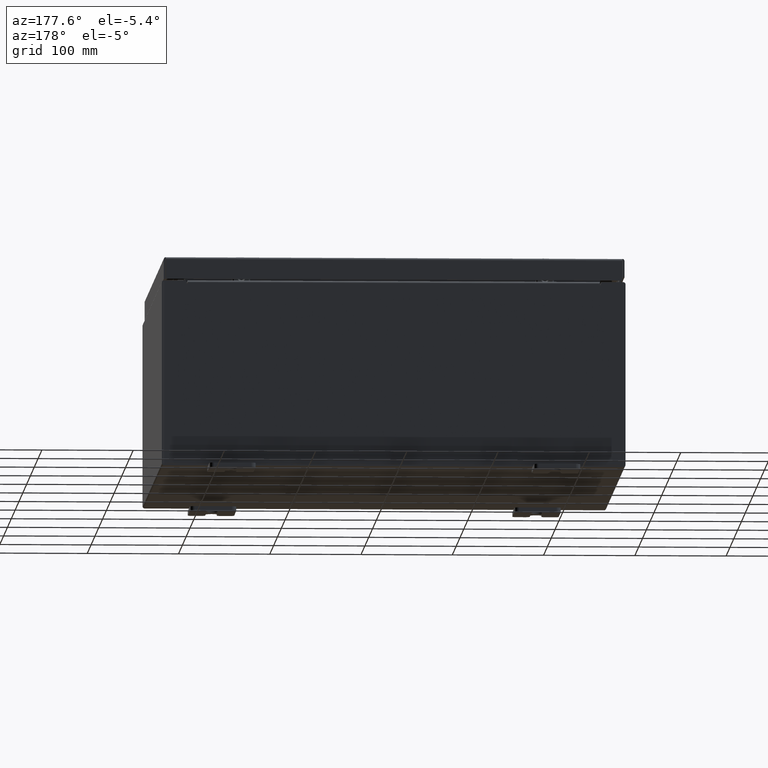
[diagram: clean part render]
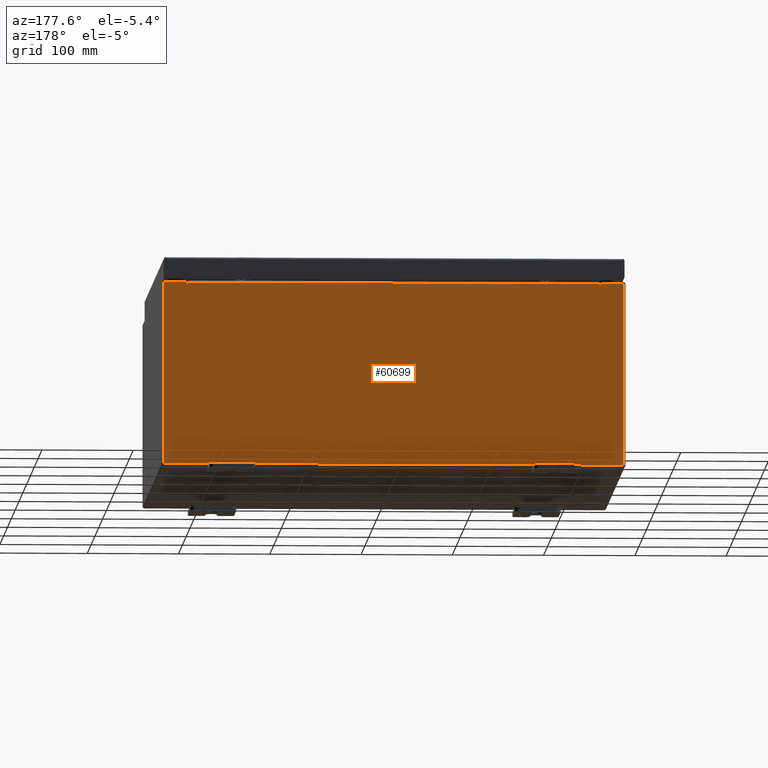
[diagram: same view with one face highlighted and labeled with its STEP entity id]
A machine part, auxiliary view. The second image highlights one B-rep face of the part: STEP entity #60699.
In plain terms, the highlighted planar face has unit normal (0, -1, 0).
Its self-contained STEP definition (entity closure, byte-faithful):
#80 = LINE ( 'NONE', #49417, #36133 ) ;
#766 = VERTEX_POINT ( 'NONE', #25278 ) ;
#2385 = CARTESIAN_POINT ( 'NONE',  ( 8.887200000000000000, 0.0000000000000000000, 3.874949999999999700 ) ) ;
#3196 = ORIENTED_EDGE ( 'NONE', *, *, #36153, .F. ) ;
#3719 = CARTESIAN_POINT ( 'NONE',  ( -8.887200000000000000, 1.024442997624098700E-016, 3.912299999999999700 ) ) ;
#4032 = VERTEX_POINT ( 'NONE', #20418 ) ;
#4768 = LINE ( 'NONE', #44966, #42350 ) ;
#5080 = VECTOR ( 'NONE', #29227, 39.37007874015748100 ) ;
#5170 = VERTEX_POINT ( 'NONE', #28184 ) ;
#5318 = DIRECTION ( 'NONE',  ( 0.0000000000000000000, 0.0000000000000000000, 1.000000000000000000 ) ) ;
#5884 = ORIENTED_EDGE ( 'NONE', *, *, #16594, .F. ) ;
#6216 = ORIENTED_EDGE ( 'NONE', *, *, #29322, .F. ) ;
#7608 = VERTEX_POINT ( 'NONE', #20673 ) ;
#7720 = ORIENTED_EDGE ( 'NONE', *, *, #42020, .T. ) ;
#8677 = ORIENTED_EDGE ( 'NONE', *, *, #52267, .T. ) ;
#9258 = DIRECTION ( 'NONE',  ( 1.000000000000000000, 0.0000000000000000000, 0.0000000000000000000 ) ) ;
#9718 = EDGE_CURVE ( 'NONE', #28897, #52872, #47130, .T. ) ;
#10680 = DIRECTION ( 'NONE',  ( 1.000000000000000000, 0.0000000000000000000, 0.0000000000000000000 ) ) ;
#11616 = VECTOR ( 'NONE', #44636, 39.37007874015748100 ) ;
#12121 = LINE ( 'NONE', #38605, #36670 ) ;
#13172 = CIRCLE ( 'NONE', #33611, 0.01867500000000003900 ) ;
#13226 = EDGE_CURVE ( 'NONE', #61220, #31146, #13172, .T. ) ;
#13613 = ORIENTED_EDGE ( 'NONE', *, *, #52079, .T. ) ;
#13871 = CARTESIAN_POINT ( 'NONE',  ( -8.905874999999998200, 0.0000000000000000000, 3.874949999999999700 ) ) ;
#14194 = CARTESIAN_POINT ( 'NONE',  ( -8.924549999999998200, 0.0000000000000000000, 3.874949999999999700 ) ) ;
#14201 = LINE ( 'NONE', #23188, #40301 ) ;
#14304 = EDGE_CURVE ( 'NONE', #62305, #7608, #80, .T. ) ;
#15707 = ORIENTED_EDGE ( 'NONE', *, *, #56538, .T. ) ;
#16594 = EDGE_CURVE ( 'NONE', #58684, #61220, #23667, .T. ) ;
#18009 = CARTESIAN_POINT ( 'NONE',  ( -8.887200000000000000, -0.0000000000000000000, 0.0000000000000000000 ) ) ;
#18787 = DIRECTION ( 'NONE',  ( 0.0000000000000000000, 0.0000000000000000000, -1.000000000000000000 ) ) ;
#18833 = CARTESIAN_POINT ( 'NONE',  ( 8.924550000000000000, 0.0000000000000000000, 3.925299999999999600 ) ) ;
#18946 = LINE ( 'NONE', #21482, #43506 ) ;
#19033 = DIRECTION ( 'NONE',  ( -0.0000000000000000000, 1.000000000000000000, -0.0000000000000000000 ) ) ;
#20418 = CARTESIAN_POINT ( 'NONE',  ( 8.887200000000000000, 0.0000000000000000000, 3.912299999999999700 ) ) ;
#20673 = CARTESIAN_POINT ( 'NONE',  ( 9.925300000000000000, 0.0000000000000000000, -3.925299999999999600 ) ) ;
#20781 = EDGE_CURVE ( 'NONE', #43162, #28897, #18946, .T. ) ;
#21350 = ORIENTED_EDGE ( 'NONE', *, *, #20781, .F. ) ;
#21482 = CARTESIAN_POINT ( 'NONE',  ( 8.924549999999831200, -0.0000000000000000000, -3.873765880731813500E-013 ) ) ;
#22680 = AXIS2_PLACEMENT_3D ( 'NONE', #48415, #19033, #53340 ) ;
#22888 = CARTESIAN_POINT ( 'NONE',  ( 8.924550000000000000, 0.0000000000000000000, 3.874949999999999700 ) ) ;
#22926 = DIRECTION ( 'NONE',  ( 0.0000000000000000000, 0.0000000000000000000, -1.000000000000000000 ) ) ;
#23188 = CARTESIAN_POINT ( 'NONE',  ( -8.887200000000000000, 1.024442997624098700E-016, 3.912299999999999700 ) ) ;
#23667 = LINE ( 'NONE', #18009, #48245 ) ;
#23878 = VECTOR ( 'NONE', #5318, 39.37007874015748100 ) ;
#24252 = DIRECTION ( 'NONE',  ( 0.0000000000000000000, -0.0000000000000000000, -1.000000000000000000 ) ) ;
#24292 = CARTESIAN_POINT ( 'NONE',  ( -9.925300000000000000, 0.0000000000000000000, -3.925299999999999600 ) ) ;
#24623 = LINE ( 'NONE', #39721, #11616 ) ;
#25278 = CARTESIAN_POINT ( 'NONE',  ( -9.925300000000000000, 0.0000000000000000000, 3.925299999999999600 ) ) ;
#27178 = CARTESIAN_POINT ( 'NONE',  ( 9.925300000000000000, 0.0000000000000000000, 3.925299999999999600 ) ) ;
#27546 = ORIENTED_EDGE ( 'NONE', *, *, #9718, .F. ) ;
#28053 = LINE ( 'NONE', #24292, #5080 ) ;
#28184 = CARTESIAN_POINT ( 'NONE',  ( -9.925300000000000000, 0.0000000000000000000, -3.925299999999999600 ) ) ;
#28897 = VERTEX_POINT ( 'NONE', #22888 ) ;
#29227 = DIRECTION ( 'NONE',  ( -1.000000000000000000, -0.0000000000000000000, -0.0000000000000000000 ) ) ;
#29322 = EDGE_CURVE ( 'NONE', #52872, #4032, #50001, .T. ) ;
#29715 = CARTESIAN_POINT ( 'NONE',  ( 8.887200000000000000, 0.0000000000000000000, 0.0000000000000000000 ) ) ;
#31146 = VERTEX_POINT ( 'NONE', #14194 ) ;
#31205 = ORIENTED_EDGE ( 'NONE', *, *, #13226, .F. ) ;
#31856 = LINE ( 'NONE', #56429, #57932 ) ;
#33611 = AXIS2_PLACEMENT_3D ( 'NONE', #13871, #48172, #18787 ) ;
#36133 = VECTOR ( 'NONE', #54321, 39.37007874015748100 ) ;
#36153 = EDGE_CURVE ( 'NONE', #31146, #59396, #24623, .T. ) ;
#36623 = ORIENTED_EDGE ( 'NONE', *, *, #14304, .T. ) ;
#36670 = VECTOR ( 'NONE', #9258, 39.37007874015748100 ) ;
#38605 = CARTESIAN_POINT ( 'NONE',  ( -9.925300000000000000, 0.0000000000000000000, 3.925299999999999600 ) ) ;
#39721 = CARTESIAN_POINT ( 'NONE',  ( -8.924550000000000000, -0.0000000000000000000, 0.0000000000000000000 ) ) ;
#40301 = VECTOR ( 'NONE', #62444, 39.37007874015748100 ) ;
#41687 = DIRECTION ( 'NONE',  ( -0.0000000000000000000, -0.0000000000000000000, 1.000000000000000000 ) ) ;
#42020 = EDGE_CURVE ( 'NONE', #766, #59396, #12121, .T. ) ;
#42028 = CARTESIAN_POINT ( 'NONE',  ( -8.887200000000000000, -0.0000000000000000000, 3.874949999999999700 ) ) ;
#42350 = VECTOR ( 'NONE', #10680, 39.37007874015748100 ) ;
#43162 = VERTEX_POINT ( 'NONE', #18833 ) ;
#43506 = VECTOR ( 'NONE', #46164, 39.37007874015748100 ) ;
#43577 = CARTESIAN_POINT ( 'NONE',  ( 0.0000000000000000000, 0.0000000000000000000, 0.0000000000000000000 ) ) ;
#43697 = FACE_OUTER_BOUND ( 'NONE', #63342, .T. ) ;
#44636 = DIRECTION ( 'NONE',  ( 0.0000000000000000000, 0.0000000000000000000, 1.000000000000000000 ) ) ;
#44966 = CARTESIAN_POINT ( 'NONE',  ( -9.925300000000000000, 0.0000000000000000000, 3.925299999999999600 ) ) ;
#45835 = AXIS2_PLACEMENT_3D ( 'NONE', #43577, #53636, #24252 ) ;
#46164 = DIRECTION ( 'NONE',  ( -4.340572780400004900E-014, 0.0000000000000000000, -1.000000000000000000 ) ) ;
#47130 = CIRCLE ( 'NONE', #22680, 0.01867500000000003900 ) ;
#48172 = DIRECTION ( 'NONE',  ( -0.0000000000000000000, 1.000000000000000000, -0.0000000000000000000 ) ) ;
#48245 = VECTOR ( 'NONE', #22926, 39.37007874015748100 ) ;
#48415 = CARTESIAN_POINT ( 'NONE',  ( 8.905875000000000000, 0.0000000000000000000, 3.874949999999999700 ) ) ;
#48705 = PLANE ( 'NONE',  #45835 ) ;
#49417 = CARTESIAN_POINT ( 'NONE',  ( 9.925300000000000000, 0.0000000000000000000, 3.925299999999999600 ) ) ;
#50001 = LINE ( 'NONE', #29715, #23878 ) ;
#51787 = EDGE_CURVE ( 'NONE', #7608, #5170, #28053, .T. ) ;
#52079 = EDGE_CURVE ( 'NONE', #5170, #766, #31856, .T. ) ;
#52267 = EDGE_CURVE ( 'NONE', #58684, #4032, #14201, .T. ) ;
#52872 = VERTEX_POINT ( 'NONE', #2385 ) ;
#53340 = DIRECTION ( 'NONE',  ( 0.0000000000000000000, 0.0000000000000000000, -1.000000000000000000 ) ) ;
#53636 = DIRECTION ( 'NONE',  ( 0.0000000000000000000, -1.000000000000000000, 0.0000000000000000000 ) ) ;
#54001 = CARTESIAN_POINT ( 'NONE',  ( -8.924550000000000000, 0.0000000000000000000, 3.925299999999999600 ) ) ;
#54321 = DIRECTION ( 'NONE',  ( 0.0000000000000000000, 0.0000000000000000000, -1.000000000000000000 ) ) ;
#56429 = CARTESIAN_POINT ( 'NONE',  ( -9.925300000000000000, 0.0000000000000000000, 3.925299999999999600 ) ) ;
#56538 = EDGE_CURVE ( 'NONE', #43162, #62305, #4768, .T. ) ;
#57932 = VECTOR ( 'NONE', #41687, 39.37007874015748100 ) ;
#58684 = VERTEX_POINT ( 'NONE', #3719 ) ;
#59233 = ORIENTED_EDGE ( 'NONE', *, *, #51787, .T. ) ;
#59396 = VERTEX_POINT ( 'NONE', #54001 ) ;
#60699 = ADVANCED_FACE ( 'NONE', ( #43697 ), #48705, .F. ) ;
#61220 = VERTEX_POINT ( 'NONE', #42028 ) ;
#62305 = VERTEX_POINT ( 'NONE', #27178 ) ;
#62444 = DIRECTION ( 'NONE',  ( 1.000000000000000000, 0.0000000000000000000, 0.0000000000000000000 ) ) ;
#63342 = EDGE_LOOP ( 'NONE', ( #3196, #31205, #5884, #8677, #6216, #27546, #21350, #15707, #36623, #59233, #13613, #7720 ) ) ;